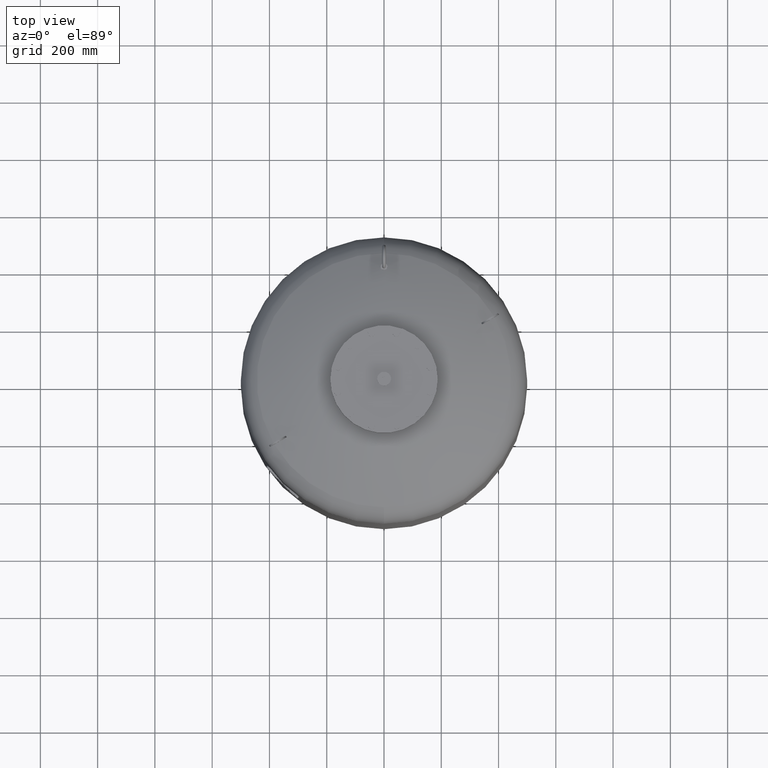
[diagram: clean part render]
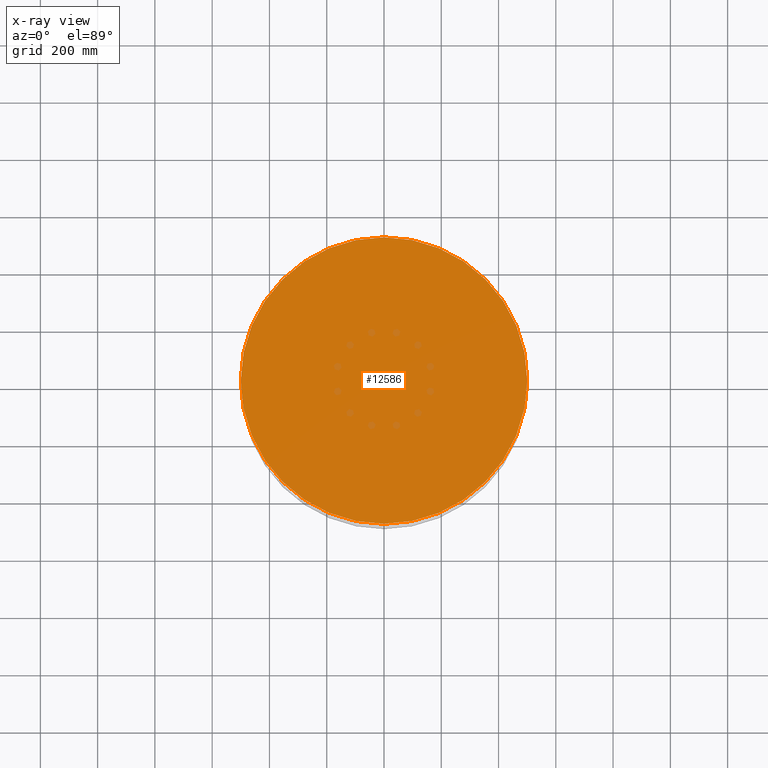
[diagram: x-ray — body ghosted, one internal face saturated and labeled with its STEP entity id]
A machine part, top view, then the same camera in x-ray: the body is ghosted and one INTERNAL B-rep face — a face not visible from any outside direction — is saturated and labeled: STEP entity #12586.
In plain terms, the highlighted planar face has unit normal (0, 0, 1).
Its self-contained STEP definition (entity closure, byte-faithful):
#12376=CARTESIAN_POINT('',(500.0,0.0,1722.500000000000000));
#12377=VERTEX_POINT('',#12376);
#12386=CARTESIAN_POINT('',(-500.0,-6.123032E-014,1722.500000000000000));
#12387=VERTEX_POINT('',#12386);
#12388=CARTESIAN_POINT('',(1.668796E-014,0.0,1722.500000000000000));
#12389=DIRECTION('',(0.0,0.0,1.0));
#12390=DIRECTION('',(1.0,0.0,0.0));
#12391=AXIS2_PLACEMENT_3D('',#12388,#12389,#12390);
#12392=CIRCLE('',#12391,500.0);
#12393=EDGE_CURVE('',#12387,#12377,#12392,.T.);
#12567=CARTESIAN_POINT('',(1.668796E-014,0.0,1722.500000000000000));
#12568=DIRECTION('',(0.0,0.0,1.0));
#12569=DIRECTION('',(1.0,0.0,0.0));
#12570=AXIS2_PLACEMENT_3D('',#12567,#12568,#12569);
#12571=CIRCLE('',#12570,500.0);
#12572=EDGE_CURVE('',#12377,#12387,#12571,.T.);
#12577=CARTESIAN_POINT('',(250.0,0.0,1722.500000000000000));
#12578=DIRECTION('',(0.0,0.0,1.0));
#12579=DIRECTION('',(1.0,0.0,0.0));
#12580=AXIS2_PLACEMENT_3D('',#12577,#12578,#12579);
#12581=PLANE('',#12580);
#12582=ORIENTED_EDGE('',*,*,#12572,.T.);
#12583=ORIENTED_EDGE('',*,*,#12393,.T.);
#12584=EDGE_LOOP('',(#12582,#12583));
#12585=FACE_OUTER_BOUND('',#12584,.T.);
#12586=ADVANCED_FACE('',(#12585),#12581,.T.);